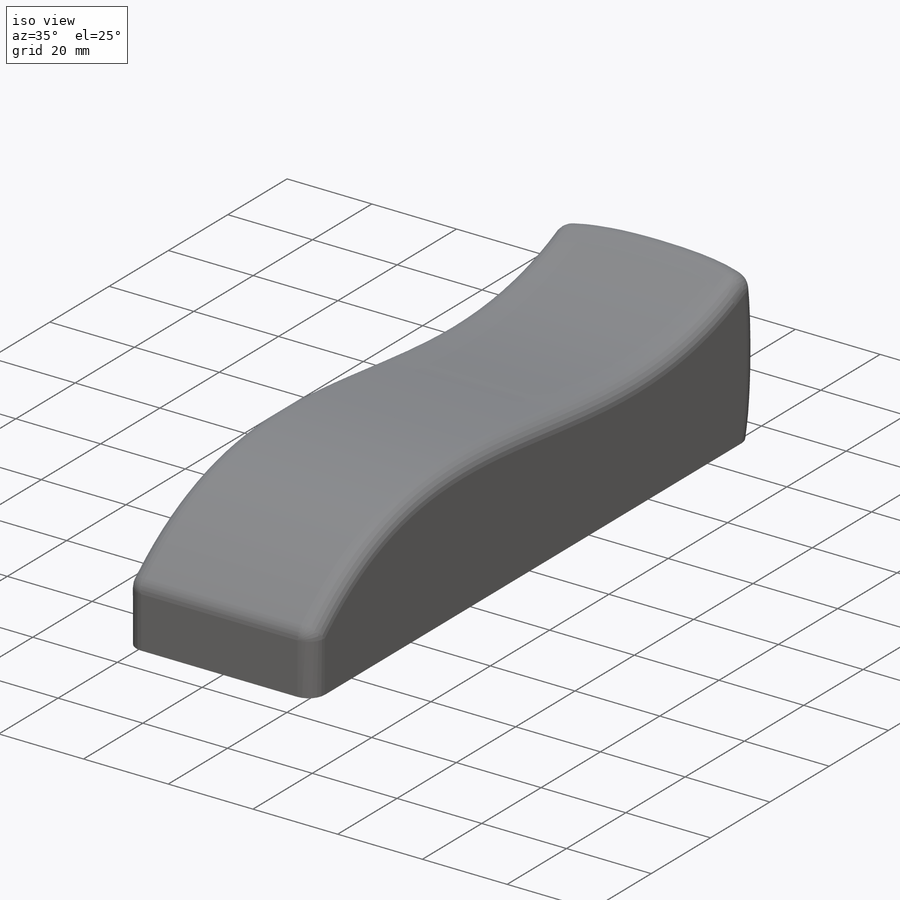
[diagram: iso view]
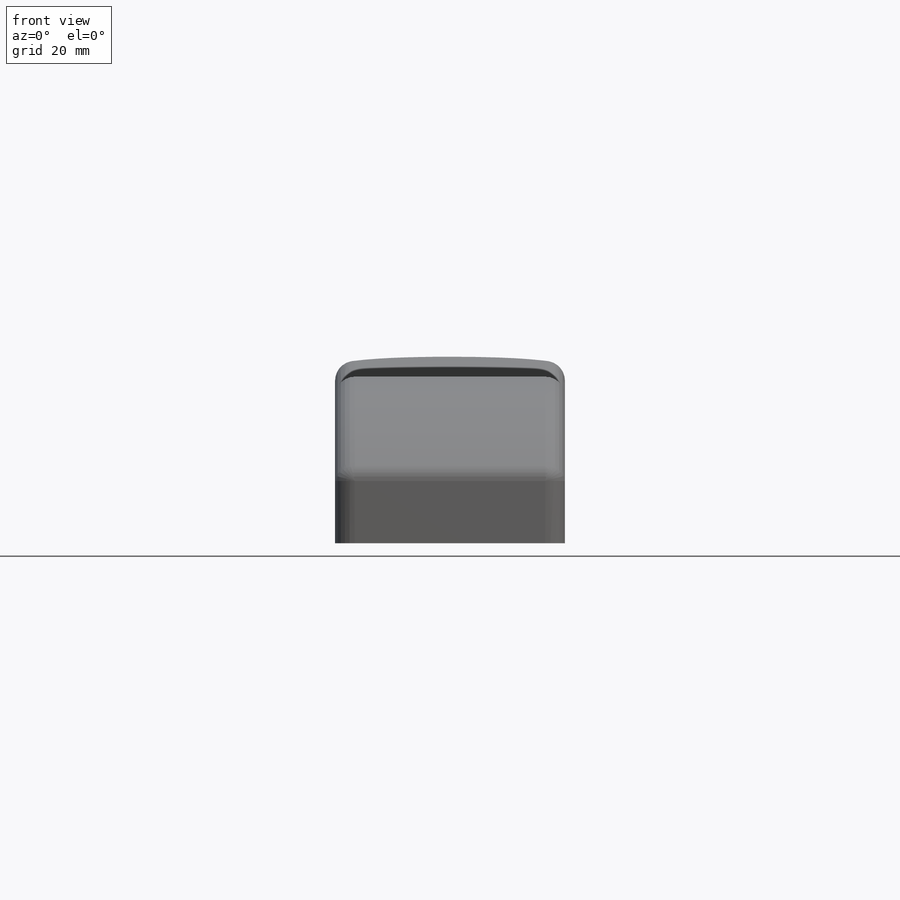
[diagram: front view]
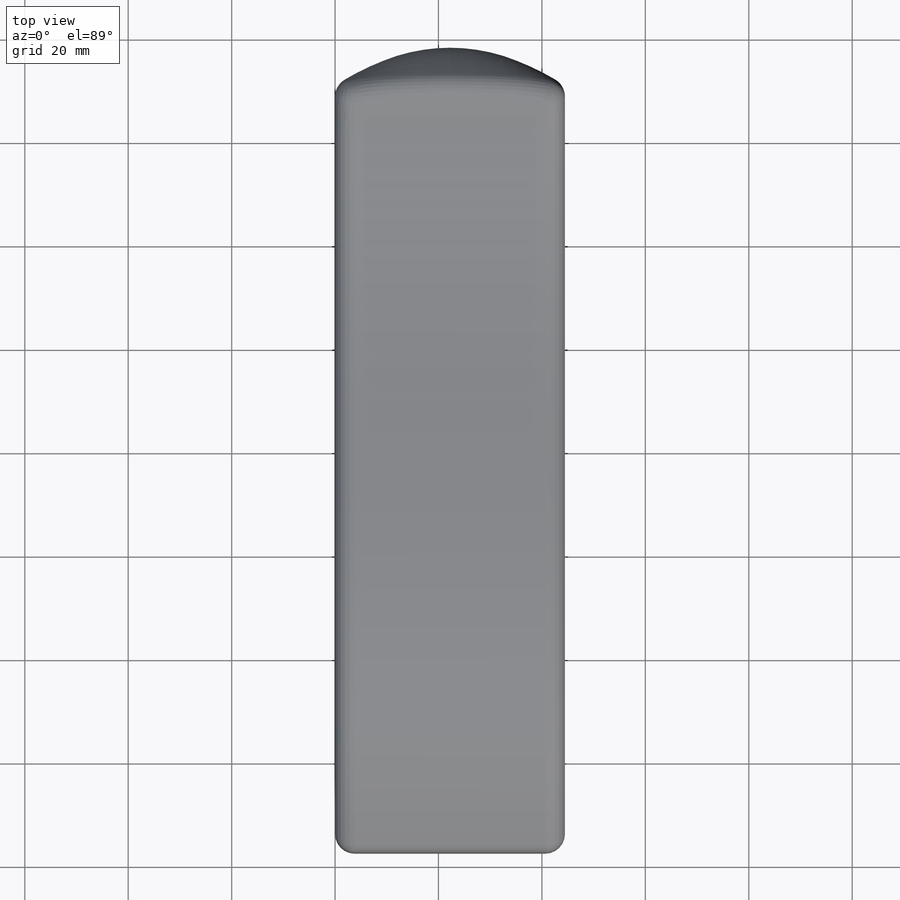
[diagram: top view]
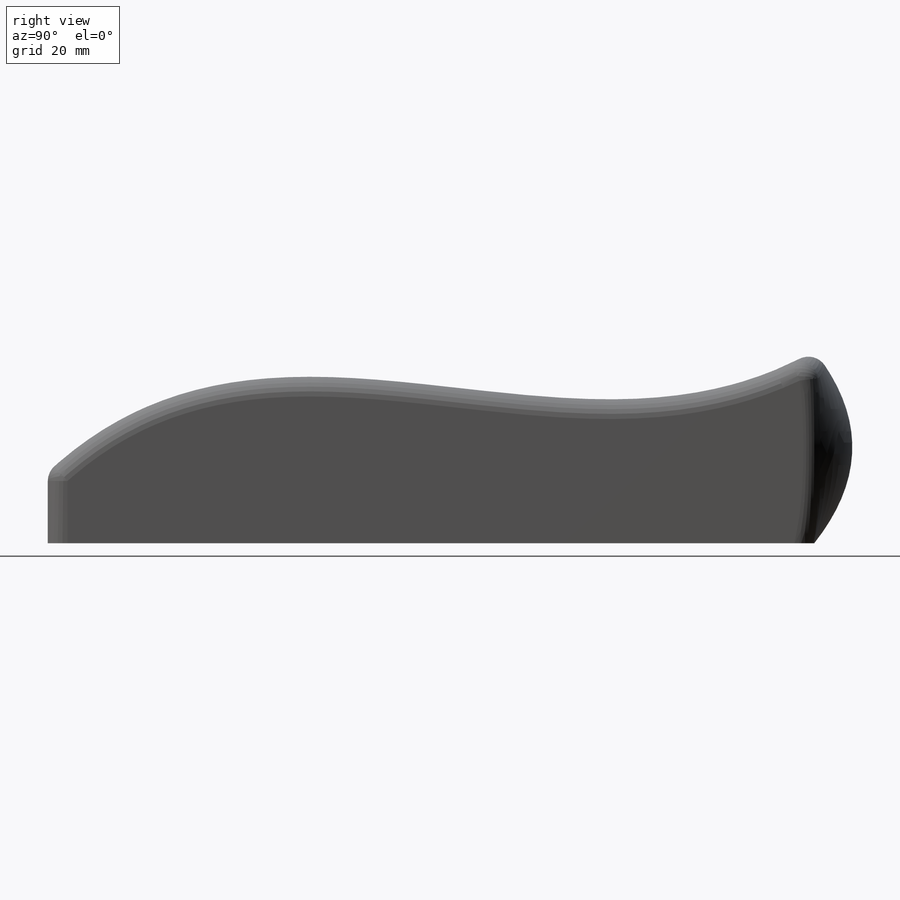
[diagram: right view]
SOLIDWORKS PART (.sldprt)
format: sldprt  version: not decoded by parser v0  size: 557,568 bytes
history: native  units: mm
features: sketch x15, shell x4, cut_extrude x4, hole x4, extrude x3, plane x2, material x1, dome x1, fillet x1 + 1 further entry (+10 scaffold rows collapsed)
feature tree (46):
  scaffold x10  (default folders/planes/origin — collapsed)
  material  "Material <not specified>"
  "Annotations"  RD1=3.718066mm RD2=4.513767mm RD3=3.901934mm RD4=46.328889mm RD5=5.708037mm
  sketch  "Sketch1"
  extrude  "Boss-Extrude1"  Depth=44.45mm
  dome  "Dome1"
  fillet  "Fillet1"  Radius=3.81mm
  shell  "Shell1"  Thickness=2.54mm
  plane  "rear screw thing"  Offset=1.27mm
  plane  "front screw thing"
  sketch  "Sketch3"  dims[D1=7.62mm D2=8.128mm D3=8.128mm D4=7.62mm]
  extrude  "screw spot 1"  Depth=7.62mm
  sketch  "Sketch5"  dims[D1=8.128mm D2=7.62mm D3=8.128mm D4=7.62mm]
  extrude  "Boss-Extrude4"  Depth=7.62mm
  shell  "Point2"  [1 undecoded]
  sketch  "Sketch8"  dims[D1=0.508mm]
  cut_extrude  "Cut-Extrude1"  [1 undecoded]
  sketch  "Sketch9"  dims[D1=0.508mm]
  cut_extrude  "Cut-Extrude2"  [1 undecoded]
  shell  "Point3"  [1 undecoded]
  shell  "Point4"  [1 undecoded]
  sketch  "Sketch10"  dims[D1=0.508mm]
  cut_extrude  "Cut-Extrude3"  [1 undecoded]
  sketch  "Sketch11"  dims[D1=0.508mm]
  cut_extrude  "Cut-Extrude6"  [1 undecoded]
  hole  "#4-40 Tapped Hole1"  Diameter=2.2606mm Depth=7.62mm
  sketch  "Sketch13"
  sketch  "Sketch12"  dims[hole-wizard template sketch: 50 standard entries collapsed; hole parameters above]
  hole  "#4-40 Tapped Hole2"  Diameter=2.2606mm Depth=7.62mm
  sketch  "Sketch15"
  sketch  "Sketch14"  dims[hole-wizard template sketch: 50 standard entries collapsed; hole parameters above]
  hole  "#4-40 Tapped Hole3"  Diameter=2.2606mm Depth=7.62mm
  sketch  "Sketch17"
  sketch  "Sketch16"  dims[hole-wizard template sketch: 50 standard entries collapsed; hole parameters above]
  hole  "#4-40 Tapped Hole4"  Diameter=2.2606mm Depth=7.62mm
  sketch  "Sketch19"
  sketch  "Sketch18"  dims[hole-wizard template sketch: 50 standard entries collapsed; hole parameters above]
decode coverage: 19 of 32 modeling features carry decoded parameters; 1 rows unclassified (native names shown)
note: ~ marks probable driven/reference dimensions
note: 7 parameter values undecoded
summary: no parameter record found for 7 features; Diameter pulled from absorbed wizard sketch
note: suppression state not decoded; provenance and decode notes live in map.json
